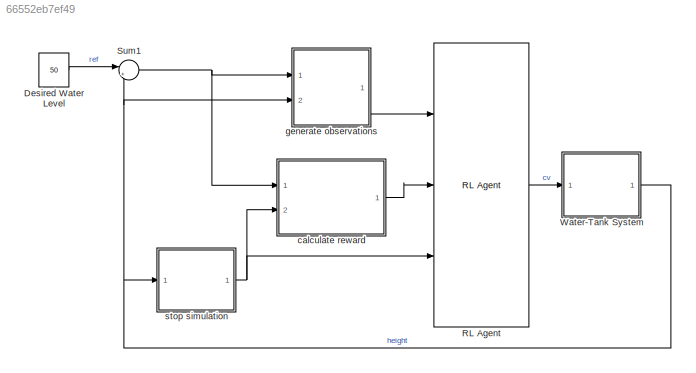
MODEL slx_66552eb7ef49
KIND model
CONFIG AbsTol = auto
CONFIG EnableMultiTasking = off
CONFIG FixedStep = auto
CONFIG MaxStep = auto
CONFIG MinStep = auto
CONFIG RelTol = 1e-3
CONFIG SampleTimeConstraint = Unconstrained
CONFIG SolverName = VariableStepAuto
CONFIG StartTime = 0.0
CONFIG StopTime = 10.0
BLOCK [Constant] Desired Water Level
  Value = 50
BLOCK [Reference] RL Agent  REF=rllib/RL Agent
  Ports = [3, 1]
  SourceBlock = rllib/RL Agent
  SourceProductName = Reinforcement Learning
  SourceType = RL Agent
BLOCK [Sum] Sum1
  Inputs = |+-
  Ports = [2, 1]
  SaturateOnIntegerOverflow = on
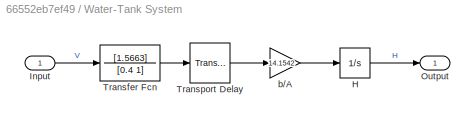
BLOCK [SubSystem] Water-Tank System
  Ports = [1, 1]
  RequestExecContextInheritance = off
BLOCK [Integrator] Water-Tank System/H
  LimitOutput = on
  LowerSaturationLimit = 0
  Ports = [1, 1]
BLOCK [Inport] Water-Tank System/Input
BLOCK [Outport] Water-Tank System/Output
  VectorParamsAs1DForOutWhenUnconnected = off
BLOCK [TransferFcn] Water-Tank System/Transfer Fcn
  Denominator = [0.4 1]
  Numerator = [1.5663]
BLOCK [TransportDelay] Water-Tank System/Transport Delay
  DelayTime = 0.3
  Ports = [1, 1]
BLOCK [Gain] Water-Tank System/b//A
  Gain = 14.1542
  OutDataTypeStr = Inherit: Same as input
  ParamDataTypeStr = Inherit: Same as input
  SaturateOnIntegerOverflow = on
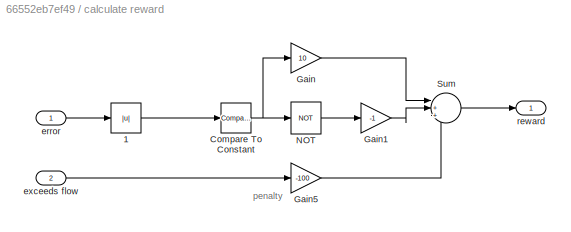
BLOCK [SubSystem] calculate reward
  Ports = [2, 1]
  RequestExecContextInheritance = off
BLOCK [Abs] calculate reward/ 1
  SaturateOnIntegerOverflow = off
BLOCK [Reference] calculate reward/Compare To Constant  REF=simulink/Logic and Bit
Operations/Compare
To Constant
  Ports = [1, 1]
  SourceBlock = simulink/Logic and Bit\nOperations/Compare\nTo Constant
  SourceProductBaseCode = SL
  SourceType = Compare To Constant
BLOCK [Gain] calculate reward/Gain
  Gain = 10
BLOCK [Gain] calculate reward/Gain1
  Gain = -1
BLOCK [Gain] calculate reward/Gain5
  Gain = -100
BLOCK [Logic] calculate reward/NOT
  AllPortsSameDT = off
  IconShape = distinctive
  Operator = NOT
  OutDataTypeStr = boolean
  Ports = [1, 1]
BLOCK [Sum] calculate reward/Sum
  Inputs = |+++
  Ports = [3, 1]
BLOCK [Inport] calculate reward/error
BLOCK [Inport] calculate reward/exceeds flow
  Port = 2
BLOCK [Outport] calculate reward/reward
  VectorParamsAs1DForOutWhenUnconnected = off
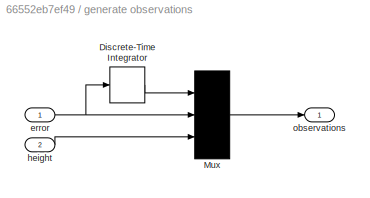
BLOCK [SubSystem] generate observations
  Ports = [2, 1]
  RequestExecContextInheritance = off
BLOCK [DiscreteIntegrator] generate observations/Discrete-Time Integrator
  ICPrevOutput = DiscIntNeverNeededParam
  ICPrevScaledInput = DiscIntNeverNeededParam
  InitialConditionSetting = Auto
  Ports = [1, 1]
  SampleTime = Ts
BLOCK [Mux] generate observations/Mux
  DisplayOption = bar
  Inputs = 3
  Ports = [3, 1]
BLOCK [Inport] generate observations/error
BLOCK [Inport] generate observations/height
  Port = 2
BLOCK [Outport] generate observations/observations
  VectorParamsAs1DForOutWhenUnconnected = off
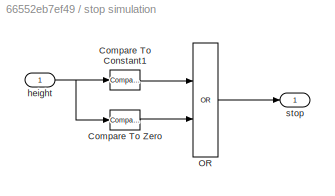
BLOCK [SubSystem] stop simulation
  Ports = [1, 1]
  RequestExecContextInheritance = off
BLOCK [Reference] stop simulation/Compare To Constant1  REF=simulink/Logic and Bit
Operations/Compare
To Constant
  Ports = [1, 1]
  SourceBlock = simulink/Logic and Bit\nOperations/Compare\nTo Constant
  SourceProductBaseCode = SL
  SourceType = Compare To Constant
BLOCK [Reference] stop simulation/Compare To Zero  REF=simulink/Logic and Bit
Operations/Compare
To Zero
  Ports = [1, 1]
  SourceBlock = simulink/Logic and Bit\nOperations/Compare\nTo Zero
  SourceProductBaseCode = SL
  SourceType = Compare To Zero
BLOCK [Logic] stop simulation/OR
  AllPortsSameDT = off
  IconShape = distinctive
  Operator = OR
  OutDataTypeStr = boolean
  Ports = [2, 1]
BLOCK [Inport] stop simulation/height
BLOCK [Outport] stop simulation/stop
  VectorParamsAs1DForOutWhenUnconnected = off
ANNOTATION calculate reward: penalty
LINE Desired Water Level:1 -> Sum1:1
LINE RL Agent:1 -> Water-Tank System:1
NET Sum1:1 -> calculate reward:1, generate observations:1
LINE Water-Tank System/H:1 -> Water-Tank System/Output:1
LINE Water-Tank System/Input:1 -> Water-Tank System/Transfer Fcn:1
LINE Water-Tank System/Transfer Fcn:1 -> Water-Tank System/Transport Delay:1
LINE Water-Tank System/Transport Delay:1 -> Water-Tank System/b//A:1
LINE Water-Tank System/b//A:1 -> Water-Tank System/H:1
NET Water-Tank System:1 -> Sum1:2, generate observations:2, stop simulation:1
LINE calculate reward/ 1:1 -> calculate reward/Compare To Constant:1
NET calculate reward/Compare To Constant:1 -> calculate reward/Gain:1, calculate reward/NOT:1
LINE calculate reward/Gain1:1 -> calculate reward/Sum:2
LINE calculate reward/Gain5:1 -> calculate reward/Sum:3
LINE calculate reward/Gain:1 -> calculate reward/Sum:1
LINE calculate reward/NOT:1 -> calculate reward/Gain1:1
LINE calculate reward/Sum:1 -> calculate reward/reward:1
LINE calculate reward/error:1 -> calculate reward/ 1:1
LINE calculate reward/exceeds flow:1 -> calculate reward/Gain5:1
LINE calculate reward:1 -> RL Agent:2
LINE generate observations/Discrete-Time Integrator:1 -> generate observations/Mux:1
LINE generate observations/Mux:1 -> generate observations/observations:1
NET generate observations/error:1 -> generate observations/Discrete-Time Integrator:1, generate observations/Mux:2
LINE generate observations/height:1 -> generate observations/Mux:3
LINE generate observations:1 -> RL Agent:1
LINE stop simulation/Compare To Constant1:1 -> stop simulation/OR:1
LINE stop simulation/Compare To Zero:1 -> stop simulation/OR:2
LINE stop simulation/OR:1 -> stop simulation/stop:1
NET stop simulation/height:1 -> stop simulation/Compare To Constant1:1, stop simulation/Compare To Zero:1
NET stop simulation:1 -> RL Agent:3, calculate reward:2
note: NET lines group one-source signal fan-out (src -> all destinations, sorted); 1:1 wires keep LINE
